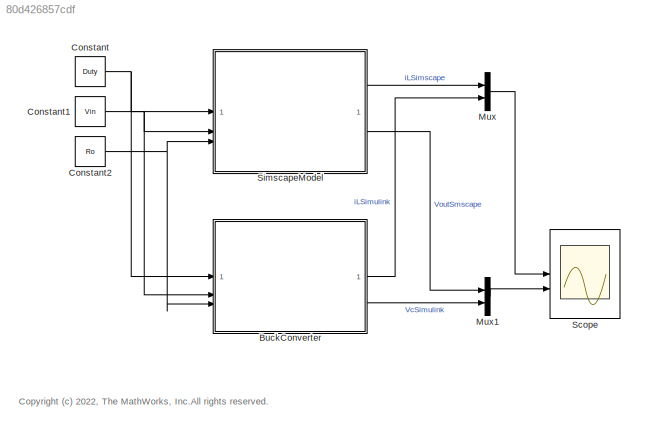
MODEL slx_80d426857cdf
KIND model
CONFIG AbsTol = auto
CONFIG EnableMultiTasking = off
CONFIG FixedStep = auto
CONFIG MaxStep = auto
CONFIG MinStep = auto
CONFIG RelTol = 1e-3
CONFIG SampleTimeConstraint = Unconstrained
CONFIG SolverName = daessc
CONFIG StartTime = 0.0
CONFIG StopTime = 0.03
BLOCK [SubSystem] BuckConverter
  ReferencedSubsystem = SimulinkAveragedBuckConverterModel
BLOCK [Constant] Constant
  Value = Duty
BLOCK [Constant] Constant1
  Value = Vin
BLOCK [Constant] Constant2
  Value = Ro
BLOCK [Mux] Mux
  DisplayOption = bar
  Inputs = 2
BLOCK [Mux] Mux1
  DisplayOption = bar
  Inputs = 2
BLOCK [Scope] Scope
  Floating = off
  NumInputPorts = 2
  ScopeSpecificationString = Simulink.scopes.TimeScopeBlockCfg('CurrentConfiguration', extmgr.ConfigurationSet(extmgr.Configuration('Core','General UI',true),extmgr.Configuration('Core','Source UI',true),extmgr.Configuration('Sources','WiredSimulink',true,'DataLogging',true),extmgr.Configuration('Visuals','Time Domain',true,'SerializedDisplays',{struct('MinYLimReal','-0.1934','MaxYLimReal','2.58124','YLabelReal','','MinYLimMa...<+2073ch>
BLOCK [SubSystem] SimscapeModel
  ReferencedSubsystem = SimscapeBuckConverterModel
ANNOTATION (root): <copyright redacted>
LINE BuckConverter:1 -> Mux:2
LINE BuckConverter:2 -> Mux1:2
NET Constant1:1 -> BuckConverter:2, SimscapeModel:2
NET Constant2:1 -> BuckConverter:3, SimscapeModel:3
NET Constant:1 -> BuckConverter:1, SimscapeModel:1
LINE Mux1:1 -> Scope:2
LINE Mux:1 -> Scope:1
LINE SimscapeModel:1 -> Mux:1
LINE SimscapeModel:2 -> Mux1:1
note: NET lines group one-source signal fan-out (src -> all destinations, sorted); 1:1 wires keep LINE
